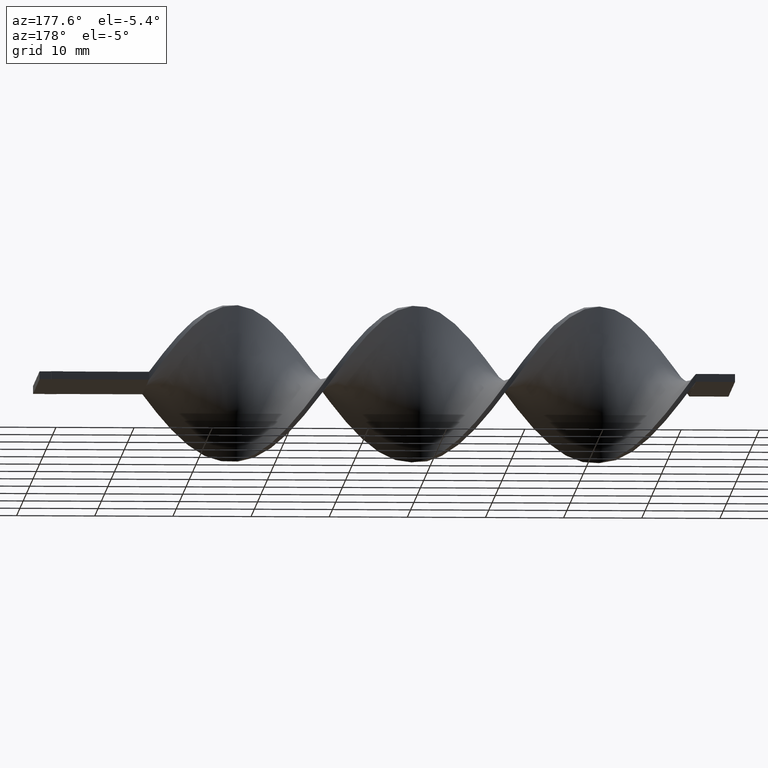
[diagram: clean part render]
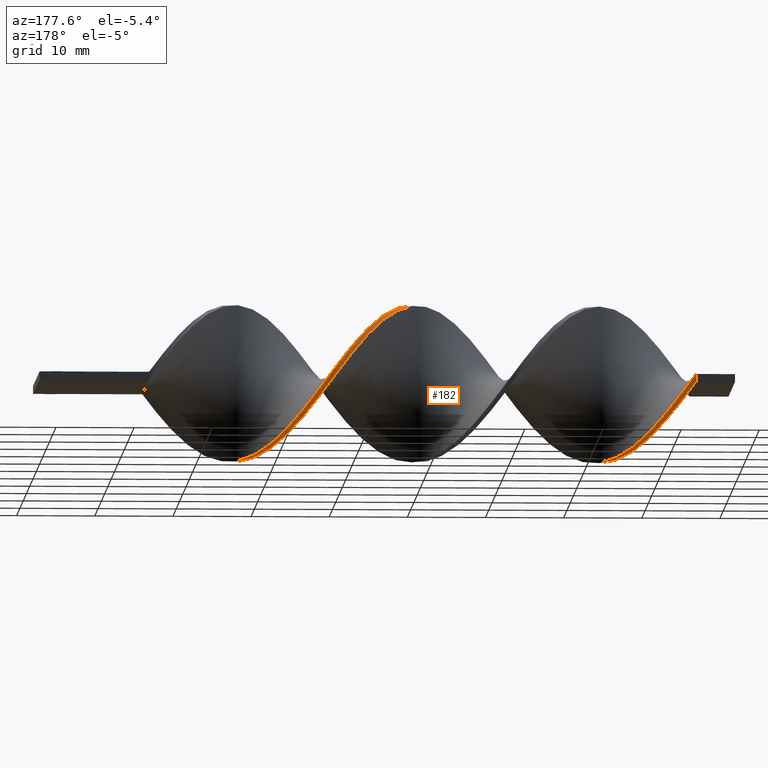
[diagram: same view with one face highlighted and labeled with its STEP entity id]
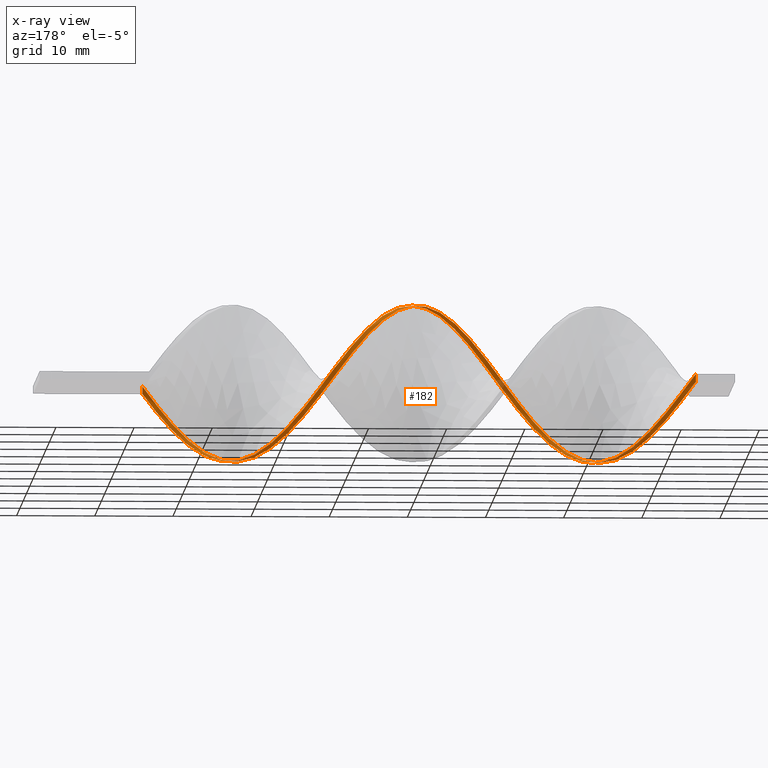
[diagram: x-ray of the same camera — body ghosted, the highlighted face saturated]
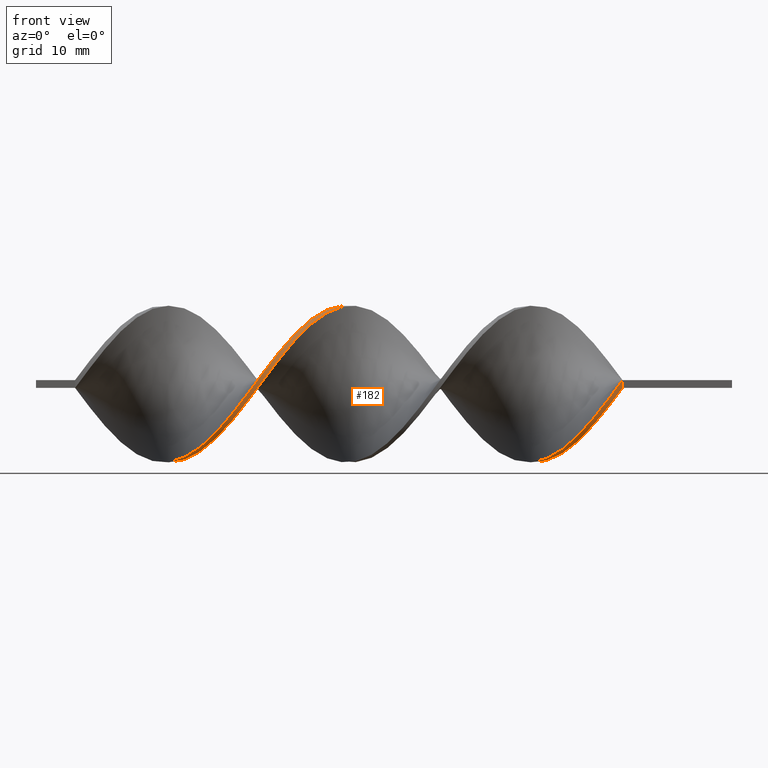
[diagram: same view with one face highlighted and labeled with its STEP entity id]
A machine part, auxiliary view. The second image highlights one B-rep face of the part: STEP entity #182.
The next image is the same camera in x-ray: the body ghosted, the highlighted face saturated — about 2% of this face is hidden behind the body in this view.
A second angle (front view) of the same face is appended — the face is thin or edge-on in the first view.
In plain terms, the highlighted face is a freeform B-spline surface patch.
Its self-contained STEP definition (entity closure, byte-faithful):
#2 = CARTESIAN_POINT ( 'NONE',  ( -22.97435897435897090, -4.013556991768067128, -9.172859983332880773 ) ) ;
#5 = CARTESIAN_POINT ( 'NONE',  ( -34.64102564102564230, 9.597441021197465005, -3.101151636102500220 ) ) ;
#8 = CARTESIAN_POINT ( 'NONE',  ( -16.69230769230769695, -9.597441021197470334, -3.101151636102497555 ) ) ;
#11 = CARTESIAN_POINT ( 'NONE',  ( -31.94871794871794535, 7.816668810831406411, -6.256971208322403832 ) ) ;
#19 = CARTESIAN_POINT ( 'NONE',  ( -59.76923076923077360, -10.06071099161113480, 0.7142198322226109841 ) ) ;
#22 = CARTESIAN_POINT ( 'NONE',  ( -50.79487179487178850, -2.899770140771670945, 9.660194033048929541 ) ) ;
#29 = CARTESIAN_POINT ( 'NONE',  ( -60.66666666666666430, -10.00000000000000178, -0.5000000000000000000 ) ) ;
#34 = CARTESIAN_POINT ( 'NONE',  ( -28.35897435897435770, 4.013556991768060911, -9.172859983332880773 ) ) ;
#35 = CARTESIAN_POINT ( 'NONE',  ( -54.38461538461538680, -7.056934957752314830, 7.206086637525145555 ) ) ;
#43 = CARTESIAN_POINT ( 'NONE',  ( -24.76923076923076650, -0.7090123655042065431, -9.987357081108200418 ) ) ;
#45 = CARTESIAN_POINT ( 'NONE',  ( -66.94871794871795601, -6.302926640005412473, -7.874079717413027701 ) ) ;
#54 = CARTESIAN_POINT ( 'NONE',  ( -16.69230769230769340, -9.597441021197470334, -3.101151636102497555 ) ) ;
#59 = CARTESIAN_POINT ( 'NONE',  ( -30.15384615384615330, 6.092139400258384185, -7.945806285570986560 ) ) ;
#60 = CARTESIAN_POINT ( 'NONE',  ( -83.10256410256410220, 10.06071099161113125, -0.7142198322226099849 ) ) ;
#67 = CARTESIAN_POINT ( 'NONE',  ( -41.82051282051281760, 8.004165665175815292, 6.136884195573978573 ) ) ;
#72 = CARTESIAN_POINT ( 'NONE',  ( -50.79487179487178850, -2.899770140771671390, 9.660194033048929541 ) ) ;
#92 = CARTESIAN_POINT ( 'NONE',  ( -48.10256410256410220, 0.7090123655042074313, 9.987357081108202195 ) ) ;
#95 = CARTESIAN_POINT ( 'NONE',  ( -30.15384615384615330, 5.269155534364728055, -8.513871032302143149 ) ) ;
#100 = CARTESIAN_POINT ( 'NONE',  ( -49.89743589743589069, -1.701721239602251634, 9.866820400852880368 ) ) ;
#104 = CARTESIAN_POINT ( 'NONE',  ( -40.92307692307691980, 9.086921842553980611, 4.204503707611078944 ) ) ;
#110 = CARTESIAN_POINT ( 'NONE',  ( -57.07692307692307310, -9.086921842553982387, 4.204503707611086938 ) ) ;
#112 = CARTESIAN_POINT ( 'NONE',  ( -71.43589743589743080, -1.701721239602260516, -9.866820400852878592 ) ) ;
#114 = CARTESIAN_POINT ( 'NONE',  ( -84.00000000000000000, 9.999999999999998224, -0.5000000000000012212 ) ) ;
#116 = CARTESIAN_POINT ( 'NONE',  ( -60.66666666666666430, -10.00000000000000178, 0.5000000000000000000 ) ) ;
#117 = CARTESIAN_POINT ( 'NONE',  ( -25.66666666666666785, -0.5036723384328433140, -10.07344676865682764 ) ) ;
#121 = CARTESIAN_POINT ( 'NONE',  ( -58.87179487179486870, -9.589760342116740333, 2.878627551588612388 ) ) ;
#124 = CARTESIAN_POINT ( 'NONE',  ( -64.25641025641024839, -9.086921842553984163, -4.204503707611079832 ) ) ;
#126 = CARTESIAN_POINT ( 'NONE',  ( -26.56410256410256210, 0.7090123655042004369, -9.987357081108200418 ) ) ;
#128 = CARTESIAN_POINT ( 'NONE',  ( -24.76923076923076650, -1.701721239602260516, -9.866820400852878592 ) ) ;
#130 = CARTESIAN_POINT ( 'NONE',  ( -75.92307692307693401, 5.127343842764453541, -8.685525933616832006 ) ) ;
#134 = CARTESIAN_POINT ( 'NONE',  ( -21.17948717948717885, -5.269155534364732496, -8.513871032302141373 ) ) ;
#140 = CARTESIAN_POINT ( 'NONE',  ( -23.87179487179487580, -2.899770140771675830, -9.660194033048927764 ) ) ;
#143 = CARTESIAN_POINT ( 'NONE',  ( -44.51282051282051100, 5.269155534364730720, 8.513871032302141373 ) ) ;
#151 = CARTESIAN_POINT ( 'NONE',  ( -48.10256410256410220, 0.7090123655042074313, 9.987357081108202195 ) ) ;
#156 = CARTESIAN_POINT ( 'NONE',  ( -67.84615384615385381, -6.092139400258388626, -7.945806285570984784 ) ) ;
#158 = CARTESIAN_POINT ( 'NONE',  ( -38.23076923076922640, 9.939289008388868751, 1.714219832222602991 ) ) ;
#159 = CARTESIAN_POINT ( 'NONE',  ( -40.92307692307691980, 8.622198670510211826, 5.089959733264289632 ) ) ;
#168 = CARTESIAN_POINT ( 'NONE',  ( -83.10256410256410220, 9.939289008388868751, -1.714219832222609874 ) ) ;
#174 = CARTESIAN_POINT ( 'NONE',  ( -34.64102564102564230, 9.597441021197465005, -3.101151636102500664 ) ) ;
#182 = ADVANCED_FACE ( 'NONE', ( #1357 ), #565, .T. ) ;
#189 = CARTESIAN_POINT ( 'NONE',  ( -13.99999999999999645, -10.00000000000000178, 0.5000000000000000000 ) ) ;
#205 = CARTESIAN_POINT ( 'NONE',  ( -42.71794871794872250, 7.816668810831409964, 6.256971208322399391 ) ) ;
#214 = CARTESIAN_POINT ( 'NONE',  ( -55.28205128205128460, -7.153546152590610774, 7.005481956493506246 ) ) ;
#218 = CARTESIAN_POINT ( 'NONE',  ( -36.43589743589743790, 9.939289008388868751, -1.714219832222609874 ) ) ;
#223 = CARTESIAN_POINT ( 'NONE',  ( -47.20512820512820440, 2.899770140771672722, 9.660194033048927764 ) ) ;
#224 = CARTESIAN_POINT ( 'NONE',  ( -48.10256410256410220, 1.701721239602261404, 9.866820400852876816 ) ) ;
#230 = CARTESIAN_POINT ( 'NONE',  ( -49.00000000000000711, 0.5036723384328420927, 10.07344676865682764 ) ) ;
#233 = CARTESIAN_POINT ( 'NONE',  ( -39.12820512820512420, 9.829076006404298127, 1.907685734162548385 ) ) ;
#239 = CARTESIAN_POINT ( 'NONE',  ( -66.94871794871794179, -6.302926640005413361, -7.874079717413027701 ) ) ;
#242 = CARTESIAN_POINT ( 'NONE',  ( -47.20512820512820440, 2.899770140771672278, 9.660194033048927764 ) ) ;
#247 = CARTESIAN_POINT ( 'NONE',  ( -74.12820512820512420, 2.899770140771672278, -9.660194033048927764 ) ) ;
#251 = CARTESIAN_POINT ( 'NONE',  ( -60.66666666666666430, -10.00000000000000178, 0.5000000000000000000 ) ) ;
#253 = CARTESIAN_POINT ( 'NONE',  ( -13.99999999999999822, -10.00000000000000178, 0.5000000000000000000 ) ) ;
#256 = CARTESIAN_POINT ( 'NONE',  ( -61.56410256410256920, -9.939289008388872304, -1.714219832222605433 ) ) ;
#259 = CARTESIAN_POINT ( 'NONE',  ( -73.23076923076924061, 1.701721239602254521, -9.866820400852878592 ) ) ;
#264 = CARTESIAN_POINT ( 'NONE',  ( -37.33333333333332860, 9.999999999999998224, 0.4999999999999988343 ) ) ;
#269 = CARTESIAN_POINT ( 'NONE',  ( -53.48717948717948900, -6.092139400258385074, 7.945806285570988337 ) ) ;
#276 = CARTESIAN_POINT ( 'NONE',  ( -26.56410256410256210, 1.701721239602254521, -9.866820400852878592 ) ) ;
#282 = CARTESIAN_POINT ( 'NONE',  ( -14.89743589743589602, -9.939289008388872304, -1.714219832222605433 ) ) ;
#283 = CARTESIAN_POINT ( 'NONE',  ( -47.20512820512820440, 1.921697069441246963, 9.901267393559574970 ) ) ;
#291 = CARTESIAN_POINT ( 'NONE',  ( -22.97435897435897090, -3.078540749082652184, -9.527464870375414563 ) ) ;
#303 = CARTESIAN_POINT ( 'NONE',  ( -72.33333333333332860, 0.5036723384328397612, -10.07344676865682942 ) ) ;
#309 = CARTESIAN_POINT ( 'NONE',  ( -39.12820512820512420, 9.589760342116742109, 2.878627551588600397 ) ) ;
#310 = CARTESIAN_POINT ( 'NONE',  ( -66.05128205128204399, -7.153546152590615215, -7.005481956493501805 ) ) ;
#313 = CARTESIAN_POINT ( 'NONE',  ( -14.89743589743589602, -10.06071099161113480, -0.7142198322226054330 ) ) ;
#318 = CARTESIAN_POINT ( 'NONE',  ( -84.00000000000000000, 9.999999999999998224, 0.4999999999999988343 ) ) ;
#321 = CARTESIAN_POINT ( 'NONE',  ( -35.53846153846153300, 9.829076006404296351, -1.907685734162555047 ) ) ;
#331 = CARTESIAN_POINT ( 'NONE',  ( -57.97435897435897090, -9.597441021197468558, 3.101151636102501996 ) ) ;
#343 = CARTESIAN_POINT ( 'NONE',  ( -52.58974358974359120, -4.235384428724044525, 9.153662347191259485 ) ) ;
#350 = CARTESIAN_POINT ( 'NONE',  ( -55.28205128205128460, -7.153546152590610774, 7.005481956493506246 ) ) ;
#352 = CARTESIAN_POINT ( 'NONE',  ( -49.89743589743589069, -0.7090123655041976614, 9.987357081108202195 ) ) ;
#362 = CARTESIAN_POINT ( 'NONE',  ( -61.56410256410256920, -10.06071099161113480, -0.7142198322226054330 ) ) ;
#369 = CARTESIAN_POINT ( 'NONE',  ( -80.41025641025640880, 8.622198670510211826, -5.089959733264292296 ) ) ;
#376 = CARTESIAN_POINT ( 'NONE',  ( -66.05128205128204399, -7.153546152590615215, -7.005481956493501805 ) ) ;
#378 = CARTESIAN_POINT ( 'NONE',  ( -49.00000000000000000, 0.5036723384328420927, 10.07344676865682942 ) ) ;
#380 = CARTESIAN_POINT ( 'NONE',  ( -76.82051282051281760, 5.269155534364728055, -8.513871032302143149 ) ) ;
#381 = CARTESIAN_POINT ( 'NONE',  ( -60.66666666666666430, -10.00000000000000178, -0.5000000000000000000 ) ) ;
#384 = CARTESIAN_POINT ( 'NONE',  ( -17.58974358974358765, -8.622198670510215379, -5.089959733264290520 ) ) ;
#390 = CARTESIAN_POINT ( 'NONE',  ( -82.20512820512820440, 9.829076006404296351, -1.907685734162555047 ) ) ;
#393 = CARTESIAN_POINT ( 'NONE',  ( -31.05128205128205465, 7.056934957752318383, -7.206086637525142891 ) ) ;
#400 = CARTESIAN_POINT ( 'NONE',  ( -75.02564102564102200, 4.013556991768060911, -9.172859983332880773 ) ) ;
#406 = CARTESIAN_POINT ( 'NONE',  ( -23.87179487179487580, -1.921697069441250516, -9.901267393559574970 ) ) ;
#413 = CARTESIAN_POINT ( 'NONE',  ( -41.82051282051281760, 8.004165665175815292, 6.136884195573978573 ) ) ;
#418 = CARTESIAN_POINT ( 'NONE',  ( -46.30769230769230660, 3.078540749082650407, 9.527464870375414563 ) ) ;
#419 = CARTESIAN_POINT ( 'NONE',  ( -39.12820512820512420, 9.589760342116742109, 2.878627551588600397 ) ) ;
#421 = CARTESIAN_POINT ( 'NONE',  ( -79.51282051282051100, 8.004165665175813515, -6.136884195573980350 ) ) ;
#432 = CARTESIAN_POINT ( 'NONE',  ( -70.53846153846153300, -1.921697069441250516, -9.901267393559574970 ) ) ;
#440 = CARTESIAN_POINT ( 'NONE',  ( -69.64102564102564941, -4.013556991768067128, -9.172859983332880773 ) ) ;
#443 = CARTESIAN_POINT ( 'NONE',  ( -19.38461538461538325, -7.153546152590615215, -7.005481956493501805 ) ) ;
#445 = CARTESIAN_POINT ( 'NONE',  ( -21.17948717948717885, -6.092139400258388626, -7.945806285570984784 ) ) ;
#448 = CARTESIAN_POINT ( 'NONE',  ( -18.48717948717948545, -8.004165665175818845, -6.136884195573979461 ) ) ;
#449 = CARTESIAN_POINT ( 'NONE',  ( -73.23076923076924061, 1.701721239602254521, -9.866820400852878592 ) ) ;
#453 = DIRECTION ( 'NONE',  ( -0.000000000000000000, -0.000000000000000000, -1.000000000000000000 ) ) ;
#459 = CARTESIAN_POINT ( 'NONE',  ( -75.02564102564102200, 4.013556991768060911, -9.172859983332880773 ) ) ;
#462 = CARTESIAN_POINT ( 'NONE',  ( -13.99999999999999645, -10.00000000000000178, 0.5000000000000000000 ) ) ;
#468 = CARTESIAN_POINT ( 'NONE',  ( -55.28205128205128460, -7.816668810831406411, 6.256971208322405609 ) ) ;
#470 = CARTESIAN_POINT ( 'NONE',  ( -73.23076923076924061, 0.7090123655042004369, -9.987357081108200418 ) ) ;
#476 = CARTESIAN_POINT ( 'NONE',  ( -52.58974358974358410, -4.235384428724044525, 9.153662347191259485 ) ) ;
#477 = CARTESIAN_POINT ( 'NONE',  ( -23.87179487179487580, -2.899770140771675830, -9.660194033048927764 ) ) ;
#488 = CARTESIAN_POINT ( 'NONE',  ( -35.53846153846153300, 9.589760342116736780, -2.878627551588606615 ) ) ;
#493 = CARTESIAN_POINT ( 'NONE',  ( -79.51282051282051100, 8.004165665175813515, -6.136884195573980350 ) ) ;
#496 = CARTESIAN_POINT ( 'NONE',  ( -62.46153846153845990, -9.829076006404301680, -1.907685734162551494 ) ) ;
#498 = CARTESIAN_POINT ( 'NONE',  ( -31.05128205128205821, 6.302926640005407144, -7.874079717413028590 ) ) ;
#500 = CARTESIAN_POINT ( 'NONE',  ( -75.92307692307691980, 4.235384428724048966, -9.153662347191257709 ) ) ;
#504 = CARTESIAN_POINT ( 'NONE',  ( -29.25641025641025905, 4.235384428724049855, -9.153662347191257709 ) ) ;
#506 = CARTESIAN_POINT ( 'NONE',  ( -38.23076923076922640, 9.939289008388868751, 1.714219832222602991 ) ) ;
#510 = CARTESIAN_POINT ( 'NONE',  ( -81.30769230769233502, 9.240231675844613690, -4.043035270954605132 ) ) ;
#511 = CARTESIAN_POINT ( 'NONE',  ( -27.46153846153846345, 1.921697069441246519, -9.901267393559574970 ) ) ;
#513 = CARTESIAN_POINT ( 'NONE',  ( -25.66666666666666785, 0.5036723384328397612, -10.07344676865682942 ) ) ;
#518 = CARTESIAN_POINT ( 'NONE',  ( -71.43589743589743080, -0.7090123655042065431, -9.987357081108200418 ) ) ;
#521 = CARTESIAN_POINT ( 'NONE',  ( -82.20512820512820440, 9.589760342116736780, -2.878627551588606615 ) ) ;
#527 = CARTESIAN_POINT ( 'NONE',  ( -59.76923076923077360, -9.939289008388872304, 1.714219832222610984 ) ) ;
#533 = CARTESIAN_POINT ( 'NONE',  ( -40.02564102564102200, 9.240231675844615467, 4.043035270954598914 ) ) ;
#539 = CARTESIAN_POINT ( 'NONE',  ( -40.92307692307691980, 8.622198670510211826, 5.089959733264289632 ) ) ;
#540 = CARTESIAN_POINT ( 'NONE',  ( -16.69230769230769340, -9.240231675844617243, -4.043035270954601579 ) ) ;
#551 = CARTESIAN_POINT ( 'NONE',  ( -84.00000000000000000, 9.999999999999998224, -0.5000000000000012212 ) ) ;
#564 = VERTEX_POINT ( 'NONE', #318 ) ;
#565 =( BOUNDED_SURFACE ( )  B_SPLINE_SURFACE ( 1, 2, ( 
 ( #1184, #282, #1294, #1417, #1058, #448, #443, #794, #674, #1534, #291, #1308, #43, #802, #1300, #785, #34, #681, #59, #1554, #905, #928, #1560, #174, #321, #1191, #1177, #158, #309, #811, #539, #67, #1065, #934, #1436, #658, #418, #1412, #92, #1198, #100, #72, #1476, #575, #724, #1236, #468, #1075, #110, #331, #609, #19, #381, #1490, #1369, #1361, #1505, #875, #376, #239, #1262, #1001, #1384, #617, #518, #866, #259, #247, #400, #130, #994, #1129, #1376, #1123, #741, #884, #390, #756, #1271 ),
 ( #253, #1134, #1394, #8, #861, #1252, #731, #1497, #632, #749, #2, #140, #1246, #117, #126, #511, #638, #504, #1144, #498, #626, #987, #730, #835, #957, #218, #1101, #1224, #1069, #1289, #981, #1336, #205, #1466, #1094, #1210, #971, #223, #1354, #230, #1613, #1363, #585, #476, #961, #1228, #350, #726, #1238, #733, #1007, #527, #116, #1121, #496, #1251, #124, #624, #1127, #1037, #156, #1055, #440, #1541, #913, #1047, #1434, #572, #1073, #1442, #380, #755, #1368, #421, #1259, #510, #1000, #1504, #114 ) ),
 .UNSPECIFIED., .F., .F., .F. ) 
 B_SPLINE_SURFACE_WITH_KNOTS ( ( 2, 2 ),
 ( 3, 2, 2, 2, 2, 2, 2, 2, 2, 2, 2, 2, 2, 2, 2, 2, 2, 2, 2, 2, 2, 2, 2, 2, 2, 2, 2, 2, 2, 2, 2, 2, 2, 2, 2, 2, 2, 2, 2, 3 ),
 ( 0.000000000000000000, 1.000000000000000000 ),
 ( 0.000000000000000000, 0.01923076923076923184, 0.03846153846153846367, 0.05769230769230769551, 0.07692307692307692735, 0.09615384615384615918, 0.1153846153846153910, 0.1346153846153846090, 0.1538461538461538547, 0.1730769230769230727, 0.1923076923076923184, 0.2115384615384615363, 0.2307692307692307820, 0.2500000000000000000, 0.2692307692307692180, 0.2884615384615384359, 0.3076923076923077094, 0.3269230769230769273, 0.3461538461538461453, 0.3653846153846153633, 0.3846153846153846367, 0.4038461538461538547, 0.4230769230769230727, 0.4423076923076922906, 0.4615384615384615641, 0.4807692307692307820, 0.5000000000000000000, 0.5192307692307692735, 0.5384615384615384359, 0.5576923076923077094, 0.5769230769230768718, 0.5961538461538461453, 0.6153846153846154188, 0.6346153846153845812, 0.6538461538461538547, 0.6730769230769231282, 0.6923076923076922906, 0.7115384615384615641, 0.7307692307692307265, 0.7500000000000000000 ),
 .UNSPECIFIED. ) 
 GEOMETRIC_REPRESENTATION_ITEM ( )  RATIONAL_B_SPLINE_SURFACE ( (
 ( 1.000000000000000000, 0.9927088740980539727, 1.000000000000000000, 0.9927088740980539727, 1.000000000000000000, 0.9927088740980539727, 1.000000000000000000, 0.9927088740980539727, 1.000000000000000000, 0.9927088740980539727, 1.000000000000000000, 0.9927088740980539727, 1.000000000000000000, 0.9927088740980539727, 1.000000000000000000, 0.9927088740980539727, 1.000000000000000000, 0.9927088740980539727, 1.000000000000000000, 0.9927088740980539727, 1.000000000000000000, 0.9927088740980539727, 1.000000000000000000, 0.9927088740980539727, 1.000000000000000000, 0.9927088740980539727, 1.000000000000000000, 0.9927088740980539727, 1.000000000000000000, 0.9927088740980539727, 1.000000000000000000, 0.9927088740980539727, 1.000000000000000000, 0.9927088740980539727, 1.000000000000000000, 0.9927088740980539727, 1.000000000000000000, 0.9927088740980539727, 1.000000000000000000, 0.9927088740980539727, 1.000000000000000000, 0.9927088740980539727, 1.000000000000000000, 0.9927088740980539727, 1.000000000000000000, 0.9927088740980539727, 1.000000000000000000, 0.9927088740980539727, 1.000000000000000000, 0.9927088740980539727, 1.000000000000000000, 0.9927088740980539727, 1.000000000000000000, 0.9927088740980539727, 1.000000000000000000, 0.9927088740980539727, 1.000000000000000000, 0.9927088740980539727, 1.000000000000000000, 0.9927088740980539727, 1.000000000000000000, 0.9927088740980539727, 1.000000000000000000, 0.9927088740980539727, 1.000000000000000000, 0.9927088740980539727, 1.000000000000000000, 0.9927088740980539727, 1.000000000000000000, 0.9927088740980539727, 1.000000000000000000, 0.9927088740980539727, 1.000000000000000000, 0.9927088740980539727, 1.000000000000000000, 0.9927088740980539727, 1.000000000000000000, 0.9927088740980539727, 1.000000000000000000),
 ( 1.000000000000000000, 0.9927088740980539727, 1.000000000000000000, 0.9927088740980539727, 1.000000000000000000, 0.9927088740980539727, 1.000000000000000000, 0.9927088740980539727, 1.000000000000000000, 0.9927088740980539727, 1.000000000000000000, 0.9927088740980539727, 1.000000000000000000, 0.9927088740980539727, 1.000000000000000000, 0.9927088740980539727, 1.000000000000000000, 0.9927088740980539727, 1.000000000000000000, 0.9927088740980539727, 1.000000000000000000, 0.9927088740980539727, 1.000000000000000000, 0.9927088740980539727, 1.000000000000000000, 0.9927088740980539727, 1.000000000000000000, 0.9927088740980539727, 1.000000000000000000, 0.9927088740980539727, 1.000000000000000000, 0.9927088740980539727, 1.000000000000000000, 0.9927088740980539727, 1.000000000000000000, 0.9927088740980539727, 1.000000000000000000, 0.9927088740980539727, 1.000000000000000000, 0.9927088740980539727, 1.000000000000000000, 0.9927088740980539727, 1.000000000000000000, 0.9927088740980539727, 1.000000000000000000, 0.9927088740980539727, 1.000000000000000000, 0.9927088740980539727, 1.000000000000000000, 0.9927088740980539727, 1.000000000000000000, 0.9927088740980539727, 1.000000000000000000, 0.9927088740980539727, 1.000000000000000000, 0.9927088740980539727, 1.000000000000000000, 0.9927088740980539727, 1.000000000000000000, 0.9927088740980539727, 1.000000000000000000, 0.9927088740980539727, 1.000000000000000000, 0.9927088740980539727, 1.000000000000000000, 0.9927088740980539727, 1.000000000000000000, 0.9927088740980539727, 1.000000000000000000, 0.9927088740980539727, 1.000000000000000000, 0.9927088740980539727, 1.000000000000000000, 0.9927088740980539727, 1.000000000000000000, 0.9927088740980539727, 1.000000000000000000, 0.9927088740980539727, 1.000000000000000000) ) ) 
 REPRESENTATION_ITEM ( '' )  SURFACE ( )  );
#572 = CARTESIAN_POINT ( 'NONE',  ( -74.12820512820512420, 1.921697069441246519, -9.901267393559574970 ) ) ;
#575 = CARTESIAN_POINT ( 'NONE',  ( -52.58974358974358410, -5.127343842764450876, 8.685525933616833782 ) ) ;
#585 = CARTESIAN_POINT ( 'NONE',  ( -51.69230769230769340, -3.078540749082649963, 9.527464870375414563 ) ) ;
#594 = CARTESIAN_POINT ( 'NONE',  ( -26.56410256410256210, 0.7090123655042004369, -9.987357081108200418 ) ) ;
#602 = CARTESIAN_POINT ( 'NONE',  ( -57.07692307692307310, -8.622198670510213603, 5.089959733264296737 ) ) ;
#609 = CARTESIAN_POINT ( 'NONE',  ( -58.87179487179486870, -9.829076006404299903, 1.907685734162560820 ) ) ;
#612 = CARTESIAN_POINT ( 'NONE',  ( -31.05128205128205465, 6.302926640005407144, -7.874079717413029478 ) ) ;
#617 = CARTESIAN_POINT ( 'NONE',  ( -70.53846153846153300, -1.921697069441250294, -9.901267393559574970 ) ) ;
#620 = CARTESIAN_POINT ( 'NONE',  ( -69.64102564102564941, -4.013556991768067128, -9.172859983332880773 ) ) ;
#624 = CARTESIAN_POINT ( 'NONE',  ( -65.15384615384614619, -8.576402663910501545, -5.307855779119662110 ) ) ;
#626 = CARTESIAN_POINT ( 'NONE',  ( -31.94871794871794535, 7.153546152590610774, -7.005481956493504470 ) ) ;
#630 = CARTESIAN_POINT ( 'NONE',  ( -70.53846153846153300, -2.899770140771675830, -9.660194033048927764 ) ) ;
#632 = CARTESIAN_POINT ( 'NONE',  ( -21.17948717948717885, -6.092139400258388626, -7.945806285570984784 ) ) ;
#635 = CARTESIAN_POINT ( 'NONE',  ( -27.46153846153846345, 2.899770140771671834, -9.660194033048927764 ) ) ;
#636 = CARTESIAN_POINT ( 'NONE',  ( -84.00000000000000000, 9.999999999999998224, -0.5000000000000012212 ) ) ;
#638 = CARTESIAN_POINT ( 'NONE',  ( -28.35897435897435770, 3.078540749082645966, -9.527464870375414563 ) ) ;
#641 = CARTESIAN_POINT ( 'NONE',  ( -49.89743589743589069, -1.701721239602251634, 9.866820400852880368 ) ) ;
#649 = ORIENTED_EDGE ( 'NONE', *, *, #1280, .F. ) ;
#650 = CARTESIAN_POINT ( 'NONE',  ( -15.79487179487179205, -9.589760342116742109, -2.878627551588603062 ) ) ;
#658 = CARTESIAN_POINT ( 'NONE',  ( -45.41025641025640880, 4.235384428724056072, 9.153662347191254156 ) ) ;
#660 = CARTESIAN_POINT ( 'NONE',  ( -20.28205128205128460, -6.302926640005412473, -7.874079717413027701 ) ) ;
#669 = CARTESIAN_POINT ( 'NONE',  ( -58.87179487179486870, -9.829076006404299903, 1.907685734162560820 ) ) ;
#674 = CARTESIAN_POINT ( 'NONE',  ( -21.17948717948717885, -5.269155534364732496, -8.513871032302141373 ) ) ;
#681 = CARTESIAN_POINT ( 'NONE',  ( -29.25641025641025905, 5.127343842764453541, -8.685525933616832006 ) ) ;
#683 = CARTESIAN_POINT ( 'NONE',  ( -17.58974358974358765, -9.086921842553984163, -4.204503707611079832 ) ) ;
#685 = CARTESIAN_POINT ( 'NONE',  ( -13.99999999999999645, -10.00000000000000178, 0.5000000000000000000 ) ) ;
#689 = CARTESIAN_POINT ( 'NONE',  ( -81.30769230769232081, 9.597441021197465005, -3.101151636102500220 ) ) ;
#712 = CARTESIAN_POINT ( 'NONE',  ( -56.17948717948717530, -8.004165665175817068, 6.136884195573983014 ) ) ;
#718 = CARTESIAN_POINT ( 'NONE',  ( -53.48717948717948900, -5.269155534364728943, 8.513871032302144926 ) ) ;
#724 = CARTESIAN_POINT ( 'NONE',  ( -53.48717948717948900, -6.092139400258385074, 7.945806285570988337 ) ) ;
#726 = CARTESIAN_POINT ( 'NONE',  ( -56.17948717948717530, -8.004165665175817068, 6.136884195573982126 ) ) ;
#727 = CARTESIAN_POINT ( 'NONE',  ( -77.71794871794874382, 6.302926640005407144, -7.874079717413029478 ) ) ;
#730 = CARTESIAN_POINT ( 'NONE',  ( -33.74358974358974450, 8.622198670510211826, -5.089959733264292296 ) ) ;
#731 = CARTESIAN_POINT ( 'NONE',  ( -19.38461538461538325, -7.816668810831409964, -6.256971208322401168 ) ) ;
#733 = CARTESIAN_POINT ( 'NONE',  ( -57.97435897435897090, -9.240231675844617243, 4.043035270954606020 ) ) ;
#735 = CARTESIAN_POINT ( 'NONE',  ( -46.30769230769230660, 4.013556991768065352, 9.172859983332880773 ) ) ;
#741 = CARTESIAN_POINT ( 'NONE',  ( -80.41025641025640880, 9.086921842553980611, -4.204503707611081609 ) ) ;
#746 = CARTESIAN_POINT ( 'NONE',  ( -62.46153846153845990, -9.829076006404301680, -1.907685734162551494 ) ) ;
#749 = CARTESIAN_POINT ( 'NONE',  ( -22.07692307692308376, -5.127343842764454429, -8.685525933616832006 ) ) ;
#752 = CARTESIAN_POINT ( 'NONE',  ( -64.25641025641024839, -8.622198670510215379, -5.089959733264290520 ) ) ;
#755 = CARTESIAN_POINT ( 'NONE',  ( -77.71794871794872961, 6.302926640005407144, -7.874079717413028590 ) ) ;
#756 = CARTESIAN_POINT ( 'NONE',  ( -83.10256410256410220, 10.06071099161113125, -0.7142198322226098739 ) ) ;
#761 = CARTESIAN_POINT ( 'NONE',  ( -81.30769230769232081, 9.240231675844611914, -4.043035270954604243 ) ) ;
#768 = CARTESIAN_POINT ( 'NONE',  ( -62.46153846153845990, -9.589760342116742109, -2.878627551588603062 ) ) ;
#770 = CARTESIAN_POINT ( 'NONE',  ( -84.00000000000000000, 9.999999999999998224, -0.1666666666666678787 ) ) ;
#775 = CARTESIAN_POINT ( 'NONE',  ( -36.43589743589743790, 10.06071099161113125, -0.7142198322226099849 ) ) ;
#785 = CARTESIAN_POINT ( 'NONE',  ( -27.46153846153846345, 2.899770140771672278, -9.660194033048927764 ) ) ;
#786 = CARTESIAN_POINT ( 'NONE',  ( -56.17948717948717530, -8.576402663910499768, 5.307855779119664774 ) ) ;
#794 = CARTESIAN_POINT ( 'NONE',  ( -20.28205128205128460, -6.302926640005413361, -7.874079717413027701 ) ) ;
#795 = CARTESIAN_POINT ( 'NONE',  ( -71.43589743589743080, -0.7090123655042065431, -9.987357081108200418 ) ) ;
#796 = CARTESIAN_POINT ( 'NONE',  ( -22.97435897435897090, -4.013556991768067128, -9.172859983332880773 ) ) ;
#799 = EDGE_CURVE ( 'NONE', #1500, #1269, #1311, .T. ) ;
#802 = CARTESIAN_POINT ( 'NONE',  ( -25.66666666666666785, 0.5036723384328397612, -10.07344676865682764 ) ) ;
#806 = B_SPLINE_CURVE_WITH_KNOTS ( 'NONE', 3,
 ( #870, #1223, #770, #636 ),
 .UNSPECIFIED., .F., .F.,
 ( 4, 4 ),
 ( 0.000000000000000000, 1.000000000000000000 ),
 .UNSPECIFIED. ) ;
#811 = CARTESIAN_POINT ( 'NONE',  ( -40.02564102564102200, 9.240231675844617243, 4.043035270954598914 ) ) ;
#812 = VECTOR ( 'NONE', #453, 1000.000000000000000 ) ;
#813 = CARTESIAN_POINT ( 'NONE',  ( -75.92307692307691980, 5.127343842764453541, -8.685525933616832006 ) ) ;
#835 = CARTESIAN_POINT ( 'NONE',  ( -34.64102564102564230, 9.240231675844613690, -4.043035270954605132 ) ) ;
#839 = CARTESIAN_POINT ( 'NONE',  ( -33.74358974358974450, 8.622198670510211826, -5.089959733264292296 ) ) ;
#843 = CARTESIAN_POINT ( 'NONE',  ( -63.35897435897436480, -9.597441021197470334, -3.101151636102497555 ) ) ;
#852 = CARTESIAN_POINT ( 'NONE',  ( -74.12820512820510999, 1.921697069441246519, -9.901267393559574970 ) ) ;
#856 = CARTESIAN_POINT ( 'NONE',  ( -32.84615384615384670, 8.004165665175813515, -6.136884195573980350 ) ) ;
#861 = CARTESIAN_POINT ( 'NONE',  ( -17.58974358974358765, -9.086921842553984163, -4.204503707611079832 ) ) ;
#863 = CARTESIAN_POINT ( 'NONE',  ( -44.51282051282051100, 6.092139400258386850, 7.945806285570984784 ) ) ;
#866 = CARTESIAN_POINT ( 'NONE',  ( -72.33333333333332860, 0.5036723384328397612, -10.07344676865682764 ) ) ;
#869 = CARTESIAN_POINT ( 'NONE',  ( -24.76923076923076650, -0.7090123655042065431, -9.987357081108200418 ) ) ;
#870 = CARTESIAN_POINT ( 'NONE',  ( -84.00000000000000000, 9.999999999999998224, 0.4999999999999988343 ) ) ;
#875 = CARTESIAN_POINT ( 'NONE',  ( -65.15384615384614619, -8.004165665175818845, -6.136884195573979461 ) ) ;
#884 = CARTESIAN_POINT ( 'NONE',  ( -81.30769230769233502, 9.597441021197465005, -3.101151636102500664 ) ) ;
#889 = CARTESIAN_POINT ( 'NONE',  ( -51.69230769230769340, -4.013556991768065352, 9.172859983332880773 ) ) ;
#896 = CARTESIAN_POINT ( 'NONE',  ( -13.99999999999999645, -10.00000000000000178, -0.5000000000000000000 ) ) ;
#905 = CARTESIAN_POINT ( 'NONE',  ( -31.94871794871794535, 7.816668810831406411, -6.256971208322403832 ) ) ;
#906 =( BOUNDED_CURVE ( )  B_SPLINE_CURVE ( 2, ( #462, #313, #1440, #54, #683, #947, #1061, #1580, #445, #1432, #796, #477, #128, #972, #594, #953, #1096, #1221, #95, #612, #1230, #856, #839, #989, #488, #1365, #1469, #1493, #233, #1107, #104, #1479, #1338, #963, #863, #982, #735, #242, #224, #378, #352, #1248, #1372, #343, #718, #1601, #214, #712, #602, #1590, #121, #1256, #251, #362, #746, #843, #1486, #1242, #1132, #1614, #1117, #1347, #620, #630, #112, #1457, #470, #852, #1125, #500, #1356, #727, #1608, #493, #369, #761, #521, #168, #1508 ),
 .UNSPECIFIED., .F., .T. ) 
 B_SPLINE_CURVE_WITH_KNOTS ( ( 3, 2, 2, 2, 2, 2, 2, 2, 2, 2, 2, 2, 2, 2, 2, 2, 2, 2, 2, 2, 2, 2, 2, 2, 2, 2, 2, 2, 2, 2, 2, 2, 2, 2, 2, 2, 2, 2, 2, 3 ),
 ( 0.000000000000000000, 0.01923076923076923184, 0.03846153846153846367, 0.05769230769230768857, 0.07692307692307692735, 0.09615384615384615918, 0.1153846153846153771, 0.1346153846153846090, 0.1538461538461538547, 0.1730769230769230449, 0.1923076923076923184, 0.2115384615384615363, 0.2307692307692307543, 0.2500000000000000000, 0.2692307692307692180, 0.2884615384615384359, 0.3076923076923077094, 0.3269230769230769273, 0.3461538461538460898, 0.3653846153846153633, 0.3846153846153846367, 0.4038461538461539102, 0.4230769230769230727, 0.4423076923076922906, 0.4615384615384615086, 0.4807692307692307820, 0.5000000000000000000, 0.5192307692307692735, 0.5384615384615384359, 0.5576923076923077094, 0.5769230769230768718, 0.5961538461538461453, 0.6153846153846154188, 0.6346153846153845812, 0.6538461538461538547, 0.6730769230769230171, 0.6923076923076921796, 0.7115384615384615641, 0.7307692307692307265, 0.7500000000000000000 ),
 .UNSPECIFIED. ) 
 CURVE ( )  GEOMETRIC_REPRESENTATION_ITEM ( )  RATIONAL_B_SPLINE_CURVE ( ( 1.000000000000000000, 0.9927088740980539727, 1.000000000000000000, 0.9927088740980539727, 1.000000000000000000, 0.9927088740980539727, 1.000000000000000000, 0.9927088740980539727, 1.000000000000000000, 0.9927088740980539727, 1.000000000000000000, 0.9927088740980539727, 1.000000000000000000, 0.9927088740980539727, 1.000000000000000000, 0.9927088740980539727, 1.000000000000000000, 0.9927088740980539727, 1.000000000000000000, 0.9927088740980539727, 1.000000000000000000, 0.9927088740980539727, 1.000000000000000000, 0.9927088740980539727, 1.000000000000000000, 0.9927088740980539727, 1.000000000000000000, 0.9927088740980539727, 1.000000000000000000, 0.9927088740980539727, 1.000000000000000000, 0.9927088740980539727, 1.000000000000000000, 0.9927088740980539727, 1.000000000000000000, 0.9927088740980539727, 1.000000000000000000, 0.9927088740980539727, 1.000000000000000000, 0.9927088740980539727, 1.000000000000000000, 0.9927088740980539727, 1.000000000000000000, 0.9927088740980539727, 1.000000000000000000, 0.9927088740980539727, 1.000000000000000000, 0.9927088740980539727, 1.000000000000000000, 0.9927088740980539727, 1.000000000000000000, 0.9927088740980539727, 1.000000000000000000, 0.9927088740980539727, 1.000000000000000000, 0.9927088740980539727, 1.000000000000000000, 0.9927088740980539727, 1.000000000000000000, 0.9927088740980539727, 1.000000000000000000, 0.9927088740980539727, 1.000000000000000000, 0.9927088740980539727, 1.000000000000000000, 0.9927088740980539727, 1.000000000000000000, 0.9927088740980539727, 1.000000000000000000, 0.9927088740980539727, 1.000000000000000000, 0.9927088740980539727, 1.000000000000000000, 0.9927088740980539727, 1.000000000000000000, 0.9927088740980539727, 1.000000000000000000, 0.9927088740980539727, 1.000000000000000000 ) ) 
 REPRESENTATION_ITEM ( '' )  );
#907 = CARTESIAN_POINT ( 'NONE',  ( -18.48717948717948545, -8.004165665175818845, -6.136884195573979461 ) ) ;
#913 = CARTESIAN_POINT ( 'NONE',  ( -71.43589743589743080, -1.701721239602260516, -9.866820400852878592 ) ) ;
#928 = CARTESIAN_POINT ( 'NONE',  ( -32.84615384615384670, 8.576402663910496216, -5.307855779119662998 ) ) ;
#930 = CARTESIAN_POINT ( 'NONE',  ( -77.71794871794874382, 7.056934957752318383, -7.206086637525142891 ) ) ;
#934 = CARTESIAN_POINT ( 'NONE',  ( -43.61538461538461320, 6.302926640005414249, 7.874079717413025925 ) ) ;
#937 = CARTESIAN_POINT ( 'NONE',  ( -80.41025641025640880, 9.086921842553980611, -4.204503707611081609 ) ) ;
#944 = CARTESIAN_POINT ( 'NONE',  ( -76.82051282051281760, 6.092139400258384185, -7.945806285570986560 ) ) ;
#947 = CARTESIAN_POINT ( 'NONE',  ( -18.48717948717948545, -8.576402663910501545, -5.307855779119662110 ) ) ;
#953 = CARTESIAN_POINT ( 'NONE',  ( -27.46153846153846345, 1.921697069441246519, -9.901267393559574970 ) ) ;
#957 = CARTESIAN_POINT ( 'NONE',  ( -35.53846153846153300, 9.589760342116736780, -2.878627551588606615 ) ) ;
#961 = CARTESIAN_POINT ( 'NONE',  ( -53.48717948717948900, -5.269155534364728943, 8.513871032302144926 ) ) ;
#963 = CARTESIAN_POINT ( 'NONE',  ( -43.61538461538461320, 7.056934957752321047, 7.206086637525138450 ) ) ;
#971 = CARTESIAN_POINT ( 'NONE',  ( -46.30769230769230660, 4.013556991768065352, 9.172859983332880773 ) ) ;
#972 = CARTESIAN_POINT ( 'NONE',  ( -25.66666666666666785, -0.5036723384328433140, -10.07344676865682942 ) ) ;
#981 = CARTESIAN_POINT ( 'NONE',  ( -40.92307692307691980, 9.086921842553980611, 4.204503707611078944 ) ) ;
#982 = CARTESIAN_POINT ( 'NONE',  ( -45.41025641025640880, 5.127343842764457982, 8.685525933616828453 ) ) ;
#987 = CARTESIAN_POINT ( 'NONE',  ( -32.84615384615384670, 8.004165665175813515, -6.136884195573980350 ) ) ;
#989 = CARTESIAN_POINT ( 'NONE',  ( -34.64102564102564230, 9.240231675844611914, -4.043035270954604243 ) ) ;
#994 = CARTESIAN_POINT ( 'NONE',  ( -76.82051282051281760, 6.092139400258384185, -7.945806285570986560 ) ) ;
#996 = CARTESIAN_POINT ( 'NONE',  ( -13.99999999999999645, -10.00000000000000178, -0.5000000000000000000 ) ) ;
#997 = EDGE_CURVE ( 'NONE', #564, #1292, #806, .T. ) ;
#1000 = CARTESIAN_POINT ( 'NONE',  ( -82.20512820512820440, 9.589760342116736780, -2.878627551588606615 ) ) ;
#1001 = CARTESIAN_POINT ( 'NONE',  ( -68.74358974358973740, -4.235384428724052519, -9.153662347191257709 ) ) ;
#1003 = CARTESIAN_POINT ( 'NONE',  ( -32.84615384615384670, 8.576402663910496216, -5.307855779119662998 ) ) ;
#1007 = CARTESIAN_POINT ( 'NONE',  ( -58.87179487179486870, -9.589760342116740333, 2.878627551588612388 ) ) ;
#1012 =( BOUNDED_CURVE ( )  B_SPLINE_CURVE ( 2, ( #896, #1013, #650, #540, #384, #907, #1145, #660, #134, #1286, #1518, #406, #869, #513, #276, #635, #1405, #1379, #1138, #393, #11, #1003, #1387, #5, #1526, #775, #264, #506, #419, #533, #159, #413, #1272, #1535, #143, #1413, #1159, #283, #151, #1266, #641, #22, #889, #1397, #269, #35, #1031, #786, #1295, #1150, #669, #1499, #29, #256, #768, #1278, #752, #1021, #310, #45, #1076, #1066, #1185, #432, #795, #303, #449, #1438, #459, #813, #944, #930, #1570, #1555, #937, #689, #1301, #60, #1427 ),
 .UNSPECIFIED., .F., .T. ) 
 B_SPLINE_CURVE_WITH_KNOTS ( ( 3, 2, 2, 2, 2, 2, 2, 2, 2, 2, 2, 2, 2, 2, 2, 2, 2, 2, 2, 2, 2, 2, 2, 2, 2, 2, 2, 2, 2, 2, 2, 2, 2, 2, 2, 2, 2, 2, 2, 3 ),
 ( 0.000000000000000000, 0.01923076923076923184, 0.03846153846153846367, 0.05769230769230768857, 0.07692307692307692735, 0.09615384615384615918, 0.1153846153846153771, 0.1346153846153846090, 0.1538461538461538547, 0.1730769230769230449, 0.1923076923076923184, 0.2115384615384615363, 0.2307692307692307543, 0.2500000000000000000, 0.2692307692307692180, 0.2884615384615384359, 0.3076923076923077094, 0.3269230769230769273, 0.3461538461538460898, 0.3653846153846153633, 0.3846153846153846367, 0.4038461538461539102, 0.4230769230769230727, 0.4423076923076922906, 0.4615384615384615086, 0.4807692307692307820, 0.5000000000000000000, 0.5192307692307692735, 0.5384615384615384359, 0.5576923076923077094, 0.5769230769230768718, 0.5961538461538461453, 0.6153846153846154188, 0.6346153846153845812, 0.6538461538461538547, 0.6730769230769230171, 0.6923076923076921796, 0.7115384615384615641, 0.7307692307692307265, 0.7500000000000000000 ),
 .UNSPECIFIED. ) 
 CURVE ( )  GEOMETRIC_REPRESENTATION_ITEM ( )  RATIONAL_B_SPLINE_CURVE ( ( 1.000000000000000000, 0.9927088740980539727, 1.000000000000000000, 0.9927088740980539727, 1.000000000000000000, 0.9927088740980539727, 1.000000000000000000, 0.9927088740980539727, 1.000000000000000000, 0.9927088740980539727, 1.000000000000000000, 0.9927088740980539727, 1.000000000000000000, 0.9927088740980539727, 1.000000000000000000, 0.9927088740980539727, 1.000000000000000000, 0.9927088740980539727, 1.000000000000000000, 0.9927088740980539727, 1.000000000000000000, 0.9927088740980539727, 1.000000000000000000, 0.9927088740980539727, 1.000000000000000000, 0.9927088740980539727, 1.000000000000000000, 0.9927088740980539727, 1.000000000000000000, 0.9927088740980539727, 1.000000000000000000, 0.9927088740980539727, 1.000000000000000000, 0.9927088740980539727, 1.000000000000000000, 0.9927088740980539727, 1.000000000000000000, 0.9927088740980539727, 1.000000000000000000, 0.9927088740980539727, 1.000000000000000000, 0.9927088740980539727, 1.000000000000000000, 0.9927088740980539727, 1.000000000000000000, 0.9927088740980539727, 1.000000000000000000, 0.9927088740980539727, 1.000000000000000000, 0.9927088740980539727, 1.000000000000000000, 0.9927088740980539727, 1.000000000000000000, 0.9927088740980539727, 1.000000000000000000, 0.9927088740980539727, 1.000000000000000000, 0.9927088740980539727, 1.000000000000000000, 0.9927088740980539727, 1.000000000000000000, 0.9927088740980539727, 1.000000000000000000, 0.9927088740980539727, 1.000000000000000000, 0.9927088740980539727, 1.000000000000000000, 0.9927088740980539727, 1.000000000000000000, 0.9927088740980539727, 1.000000000000000000, 0.9927088740980539727, 1.000000000000000000, 0.9927088740980539727, 1.000000000000000000, 0.9927088740980539727, 1.000000000000000000, 0.9927088740980539727, 1.000000000000000000 ) ) 
 REPRESENTATION_ITEM ( '' )  );
#1013 = CARTESIAN_POINT ( 'NONE',  ( -14.89743589743589602, -9.939289008388872304, -1.714219832222605433 ) ) ;
#1021 = CARTESIAN_POINT ( 'NONE',  ( -65.15384615384614619, -8.004165665175818845, -6.136884195573979461 ) ) ;
#1031 = CARTESIAN_POINT ( 'NONE',  ( -55.28205128205128460, -7.816668810831406411, 6.256971208322405609 ) ) ;
#1037 = CARTESIAN_POINT ( 'NONE',  ( -66.94871794871794179, -7.056934957752321935, -7.206086637525141114 ) ) ;
#1047 = CARTESIAN_POINT ( 'NONE',  ( -72.33333333333332860, -0.5036723384328433140, -10.07344676865682764 ) ) ;
#1055 = CARTESIAN_POINT ( 'NONE',  ( -68.74358974358973740, -5.127343842764454429, -8.685525933616832006 ) ) ;
#1058 = CARTESIAN_POINT ( 'NONE',  ( -17.58974358974358765, -8.622198670510215379, -5.089959733264290520 ) ) ;
#1061 = CARTESIAN_POINT ( 'NONE',  ( -19.38461538461538325, -7.816668810831409964, -6.256971208322401168 ) ) ;
#1065 = CARTESIAN_POINT ( 'NONE',  ( -42.71794871794872250, 7.153546152590615215, 7.005481956493500029 ) ) ;
#1066 = CARTESIAN_POINT ( 'NONE',  ( -68.74358974358973740, -4.235384428724051631, -9.153662347191257709 ) ) ;
#1069 = CARTESIAN_POINT ( 'NONE',  ( -39.12820512820512420, 9.829076006404298127, 1.907685734162548385 ) ) ;
#1073 = CARTESIAN_POINT ( 'NONE',  ( -75.02564102564102200, 3.078540749082645966, -9.527464870375414563 ) ) ;
#1075 = CARTESIAN_POINT ( 'NONE',  ( -56.17948717948717530, -8.576402663910499768, 5.307855779119664774 ) ) ;
#1076 = CARTESIAN_POINT ( 'NONE',  ( -67.84615384615385381, -5.269155534364732496, -8.513871032302141373 ) ) ;
#1094 = CARTESIAN_POINT ( 'NONE',  ( -44.51282051282051100, 6.092139400258386850, 7.945806285570984784 ) ) ;
#1096 = CARTESIAN_POINT ( 'NONE',  ( -28.35897435897435770, 3.078540749082645966, -9.527464870375414563 ) ) ;
#1101 = CARTESIAN_POINT ( 'NONE',  ( -37.33333333333332860, 9.999999999999998224, -0.5000000000000012212 ) ) ;
#1107 = CARTESIAN_POINT ( 'NONE',  ( -40.02564102564102200, 9.597441021197468558, 3.101151636102494003 ) ) ;
#1117 = CARTESIAN_POINT ( 'NONE',  ( -67.84615384615385381, -6.092139400258388626, -7.945806285570984784 ) ) ;
#1121 = CARTESIAN_POINT ( 'NONE',  ( -61.56410256410256920, -10.06071099161113480, -0.7142198322226053220 ) ) ;
#1123 = CARTESIAN_POINT ( 'NONE',  ( -79.51282051282051100, 8.576402663910496216, -5.307855779119662998 ) ) ;
#1125 = CARTESIAN_POINT ( 'NONE',  ( -75.02564102564102200, 3.078540749082645966, -9.527464870375414563 ) ) ;
#1127 = CARTESIAN_POINT ( 'NONE',  ( -66.05128205128204399, -7.816668810831409964, -6.256971208322401168 ) ) ;
#1129 = CARTESIAN_POINT ( 'NONE',  ( -77.71794871794872961, 7.056934957752318383, -7.206086637525142891 ) ) ;
#1132 = CARTESIAN_POINT ( 'NONE',  ( -66.05128205128204399, -7.816668810831409964, -6.256971208322401168 ) ) ;
#1134 = CARTESIAN_POINT ( 'NONE',  ( -14.89743589743589602, -10.06071099161113480, -0.7142198322226053220 ) ) ;
#1138 = CARTESIAN_POINT ( 'NONE',  ( -30.15384615384615330, 6.092139400258384185, -7.945806285570986560 ) ) ;
#1144 = CARTESIAN_POINT ( 'NONE',  ( -30.15384615384615330, 5.269155534364728055, -8.513871032302143149 ) ) ;
#1145 = CARTESIAN_POINT ( 'NONE',  ( -19.38461538461538325, -7.153546152590615215, -7.005481956493501805 ) ) ;
#1150 = CARTESIAN_POINT ( 'NONE',  ( -57.97435897435897090, -9.597441021197468558, 3.101151636102501552 ) ) ;
#1159 = CARTESIAN_POINT ( 'NONE',  ( -46.30769230769230660, 3.078540749082650407, 9.527464870375414563 ) ) ;
#1177 = CARTESIAN_POINT ( 'NONE',  ( -37.33333333333332860, 9.999999999999998224, 0.4999999999999988343 ) ) ;
#1184 = CARTESIAN_POINT ( 'NONE',  ( -13.99999999999999822, -10.00000000000000178, -0.5000000000000000000 ) ) ;
#1185 = CARTESIAN_POINT ( 'NONE',  ( -69.64102564102564941, -3.078540749082652184, -9.527464870375414563 ) ) ;
#1191 = CARTESIAN_POINT ( 'NONE',  ( -36.43589743589743790, 10.06071099161113125, -0.7142198322226098739 ) ) ;
#1198 = CARTESIAN_POINT ( 'NONE',  ( -49.00000000000000711, -0.5036723384328407604, 10.07344676865682764 ) ) ;
#1210 = CARTESIAN_POINT ( 'NONE',  ( -45.41025641025640880, 5.127343842764457982, 8.685525933616828453 ) ) ;
#1221 = CARTESIAN_POINT ( 'NONE',  ( -29.25641025641025905, 4.235384428724048966, -9.153662347191257709 ) ) ;
#1223 = CARTESIAN_POINT ( 'NONE',  ( -84.00000000000000000, 9.999999999999998224, 0.1666666666666654917 ) ) ;
#1224 = CARTESIAN_POINT ( 'NONE',  ( -38.23076923076922640, 10.06071099161113125, 0.7142198322226029905 ) ) ;
#1228 = CARTESIAN_POINT ( 'NONE',  ( -54.38461538461538680, -6.302926640005404479, 7.874079717413032142 ) ) ;
#1230 = CARTESIAN_POINT ( 'NONE',  ( -31.94871794871794535, 7.153546152590610774, -7.005481956493504470 ) ) ;
#1236 = CARTESIAN_POINT ( 'NONE',  ( -54.38461538461538680, -7.056934957752315718, 7.206086637525145555 ) ) ;
#1238 = CARTESIAN_POINT ( 'NONE',  ( -57.07692307692307310, -8.622198670510213603, 5.089959733264296737 ) ) ;
#1242 = CARTESIAN_POINT ( 'NONE',  ( -65.15384615384614619, -8.576402663910501545, -5.307855779119662110 ) ) ;
#1246 = CARTESIAN_POINT ( 'NONE',  ( -24.76923076923076650, -1.701721239602260516, -9.866820400852878592 ) ) ;
#1248 = CARTESIAN_POINT ( 'NONE',  ( -50.79487179487178850, -1.921697069441245631, 9.901267393559576746 ) ) ;
#1251 = CARTESIAN_POINT ( 'NONE',  ( -63.35897435897435770, -9.597441021197470334, -3.101151636102497555 ) ) ;
#1252 = CARTESIAN_POINT ( 'NONE',  ( -18.48717948717948545, -8.576402663910501545, -5.307855779119662110 ) ) ;
#1256 = CARTESIAN_POINT ( 'NONE',  ( -59.76923076923076650, -9.939289008388872304, 1.714219832222610984 ) ) ;
#1259 = CARTESIAN_POINT ( 'NONE',  ( -80.41025641025640880, 8.622198670510211826, -5.089959733264292296 ) ) ;
#1262 = CARTESIAN_POINT ( 'NONE',  ( -67.84615384615385381, -5.269155534364732496, -8.513871032302141373 ) ) ;
#1263 = EDGE_CURVE ( 'NONE', #1500, #1292, #906, .T. ) ;
#1266 = CARTESIAN_POINT ( 'NONE',  ( -49.00000000000000000, -0.5036723384328408715, 10.07344676865682942 ) ) ;
#1269 = VERTEX_POINT ( 'NONE', #996 ) ;
#1271 = CARTESIAN_POINT ( 'NONE',  ( -84.00000000000000000, 9.999999999999998224, 0.4999999999999988343 ) ) ;
#1272 = CARTESIAN_POINT ( 'NONE',  ( -42.71794871794872250, 7.153546152590615215, 7.005481956493500029 ) ) ;
#1278 = CARTESIAN_POINT ( 'NONE',  ( -63.35897435897436480, -9.240231675844617243, -4.043035270954601579 ) ) ;
#1280 = EDGE_CURVE ( 'NONE', #1269, #564, #1012, .T. ) ;
#1286 = CARTESIAN_POINT ( 'NONE',  ( -22.07692307692308020, -4.235384428724051631, -9.153662347191257709 ) ) ;
#1289 = CARTESIAN_POINT ( 'NONE',  ( -40.02564102564102200, 9.597441021197468558, 3.101151636102494003 ) ) ;
#1292 = VERTEX_POINT ( 'NONE', #551 ) ;
#1294 = CARTESIAN_POINT ( 'NONE',  ( -15.79487179487179205, -9.589760342116742109, -2.878627551588603062 ) ) ;
#1295 = CARTESIAN_POINT ( 'NONE',  ( -57.07692307692307310, -9.086921842553982387, 4.204503707611086938 ) ) ;
#1300 = CARTESIAN_POINT ( 'NONE',  ( -26.56410256410256210, 1.701721239602254521, -9.866820400852878592 ) ) ;
#1301 = CARTESIAN_POINT ( 'NONE',  ( -82.20512820512820440, 9.829076006404296351, -1.907685734162555047 ) ) ;
#1308 = CARTESIAN_POINT ( 'NONE',  ( -23.87179487179487580, -1.921697069441250294, -9.901267393559574970 ) ) ;
#1311 = LINE ( 'NONE', #685, #812 ) ;
#1336 = CARTESIAN_POINT ( 'NONE',  ( -41.82051282051281760, 8.576402663910497992, 5.307855779119661221 ) ) ;
#1338 = CARTESIAN_POINT ( 'NONE',  ( -42.71794871794872250, 7.816668810831409964, 6.256971208322399391 ) ) ;
#1346 = ORIENTED_EDGE ( 'NONE', *, *, #799, .F. ) ;
#1347 = CARTESIAN_POINT ( 'NONE',  ( -68.74358974358973740, -5.127343842764455317, -8.685525933616832006 ) ) ;
#1354 = CARTESIAN_POINT ( 'NONE',  ( -48.10256410256410220, 1.701721239602261404, 9.866820400852876816 ) ) ;
#1356 = CARTESIAN_POINT ( 'NONE',  ( -76.82051282051281760, 5.269155534364728055, -8.513871032302143149 ) ) ;
#1357 = FACE_OUTER_BOUND ( 'NONE', #1392, .T. ) ;
#1361 = CARTESIAN_POINT ( 'NONE',  ( -63.35897435897435770, -9.240231675844619019, -4.043035270954601579 ) ) ;
#1363 = CARTESIAN_POINT ( 'NONE',  ( -50.79487179487178850, -1.921697069441245631, 9.901267393559576746 ) ) ;
#1365 = CARTESIAN_POINT ( 'NONE',  ( -36.43589743589743790, 9.939289008388868751, -1.714219832222609874 ) ) ;
#1368 = CARTESIAN_POINT ( 'NONE',  ( -78.61538461538461320, 7.153546152590610774, -7.005481956493504470 ) ) ;
#1369 = CARTESIAN_POINT ( 'NONE',  ( -62.46153846153845990, -9.589760342116742109, -2.878627551588603062 ) ) ;
#1372 = CARTESIAN_POINT ( 'NONE',  ( -51.69230769230769340, -3.078540749082649963, 9.527464870375414563 ) ) ;
#1376 = CARTESIAN_POINT ( 'NONE',  ( -78.61538461538461320, 7.816668810831406411, -6.256971208322403832 ) ) ;
#1379 = CARTESIAN_POINT ( 'NONE',  ( -29.25641025641025905, 5.127343842764453541, -8.685525933616832006 ) ) ;
#1384 = CARTESIAN_POINT ( 'NONE',  ( -69.64102564102564941, -3.078540749082652184, -9.527464870375414563 ) ) ;
#1387 = CARTESIAN_POINT ( 'NONE',  ( -33.74358974358974450, 9.086921842553980611, -4.204503707611081609 ) ) ;
#1392 = EDGE_LOOP ( 'NONE', ( #1346, #1553, #1495, #649 ) ) ;
#1394 = CARTESIAN_POINT ( 'NONE',  ( -15.79487179487179205, -9.829076006404301680, -1.907685734162551494 ) ) ;
#1397 = CARTESIAN_POINT ( 'NONE',  ( -52.58974358974359120, -5.127343842764450876, 8.685525933616833782 ) ) ;
#1405 = CARTESIAN_POINT ( 'NONE',  ( -28.35897435897435770, 4.013556991768060911, -9.172859983332880773 ) ) ;
#1412 = CARTESIAN_POINT ( 'NONE',  ( -47.20512820512820440, 1.921697069441246963, 9.901267393559574970 ) ) ;
#1413 = CARTESIAN_POINT ( 'NONE',  ( -45.41025641025640880, 4.235384428724055184, 9.153662347191254156 ) ) ;
#1417 = CARTESIAN_POINT ( 'NONE',  ( -16.69230769230769695, -9.240231675844619019, -4.043035270954601579 ) ) ;
#1427 = CARTESIAN_POINT ( 'NONE',  ( -84.00000000000000000, 9.999999999999998224, 0.4999999999999988343 ) ) ;
#1432 = CARTESIAN_POINT ( 'NONE',  ( -22.07692307692308020, -5.127343842764455317, -8.685525933616832006 ) ) ;
#1434 = CARTESIAN_POINT ( 'NONE',  ( -73.23076923076924061, 0.7090123655042004369, -9.987357081108200418 ) ) ;
#1436 = CARTESIAN_POINT ( 'NONE',  ( -44.51282051282051100, 5.269155534364730720, 8.513871032302141373 ) ) ;
#1438 = CARTESIAN_POINT ( 'NONE',  ( -74.12820512820510999, 2.899770140771671834, -9.660194033048927764 ) ) ;
#1440 = CARTESIAN_POINT ( 'NONE',  ( -15.79487179487179205, -9.829076006404301680, -1.907685734162551494 ) ) ;
#1442 = CARTESIAN_POINT ( 'NONE',  ( -75.92307692307693401, 4.235384428724049855, -9.153662347191257709 ) ) ;
#1457 = CARTESIAN_POINT ( 'NONE',  ( -72.33333333333332860, -0.5036723384328433140, -10.07344676865682942 ) ) ;
#1466 = CARTESIAN_POINT ( 'NONE',  ( -43.61538461538461320, 7.056934957752321047, 7.206086637525138450 ) ) ;
#1469 = CARTESIAN_POINT ( 'NONE',  ( -37.33333333333332860, 9.999999999999998224, -0.5000000000000012212 ) ) ;
#1476 = CARTESIAN_POINT ( 'NONE',  ( -51.69230769230769340, -4.013556991768065352, 9.172859983332880773 ) ) ;
#1479 = CARTESIAN_POINT ( 'NONE',  ( -41.82051282051281760, 8.576402663910497992, 5.307855779119661221 ) ) ;
#1486 = CARTESIAN_POINT ( 'NONE',  ( -64.25641025641024839, -9.086921842553984163, -4.204503707611079832 ) ) ;
#1490 = CARTESIAN_POINT ( 'NONE',  ( -61.56410256410256920, -9.939289008388872304, -1.714219832222605433 ) ) ;
#1493 = CARTESIAN_POINT ( 'NONE',  ( -38.23076923076922640, 10.06071099161113125, 0.7142198322226029905 ) ) ;
#1495 = ORIENTED_EDGE ( 'NONE', *, *, #997, .F. ) ;
#1497 = CARTESIAN_POINT ( 'NONE',  ( -20.28205128205128460, -7.056934957752321935, -7.206086637525141114 ) ) ;
#1499 = CARTESIAN_POINT ( 'NONE',  ( -59.76923076923076650, -10.06071099161113480, 0.7142198322226109841 ) ) ;
#1500 = VERTEX_POINT ( 'NONE', #189 ) ;
#1504 = CARTESIAN_POINT ( 'NONE',  ( -83.10256410256410220, 9.939289008388868751, -1.714219832222609874 ) ) ;
#1505 = CARTESIAN_POINT ( 'NONE',  ( -64.25641025641024839, -8.622198670510215379, -5.089959733264290520 ) ) ;
#1508 = CARTESIAN_POINT ( 'NONE',  ( -84.00000000000000000, 9.999999999999998224, -0.5000000000000012212 ) ) ;
#1518 = CARTESIAN_POINT ( 'NONE',  ( -22.97435897435897090, -3.078540749082652184, -9.527464870375414563 ) ) ;
#1526 = CARTESIAN_POINT ( 'NONE',  ( -35.53846153846153300, 9.829076006404296351, -1.907685734162555047 ) ) ;
#1534 = CARTESIAN_POINT ( 'NONE',  ( -22.07692307692308376, -4.235384428724052519, -9.153662347191257709 ) ) ;
#1535 = CARTESIAN_POINT ( 'NONE',  ( -43.61538461538461320, 6.302926640005413361, 7.874079717413025925 ) ) ;
#1541 = CARTESIAN_POINT ( 'NONE',  ( -70.53846153846153300, -2.899770140771675830, -9.660194033048927764 ) ) ;
#1553 = ORIENTED_EDGE ( 'NONE', *, *, #1263, .T. ) ;
#1554 = CARTESIAN_POINT ( 'NONE',  ( -31.05128205128205821, 7.056934957752318383, -7.206086637525142891 ) ) ;
#1555 = CARTESIAN_POINT ( 'NONE',  ( -79.51282051282051100, 8.576402663910496216, -5.307855779119662998 ) ) ;
#1560 = CARTESIAN_POINT ( 'NONE',  ( -33.74358974358974450, 9.086921842553980611, -4.204503707611081609 ) ) ;
#1570 = CARTESIAN_POINT ( 'NONE',  ( -78.61538461538461320, 7.816668810831406411, -6.256971208322403832 ) ) ;
#1580 = CARTESIAN_POINT ( 'NONE',  ( -20.28205128205128460, -7.056934957752321935, -7.206086637525141114 ) ) ;
#1590 = CARTESIAN_POINT ( 'NONE',  ( -57.97435897435897090, -9.240231675844615467, 4.043035270954605132 ) ) ;
#1601 = CARTESIAN_POINT ( 'NONE',  ( -54.38461538461538680, -6.302926640005405368, 7.874079717413033030 ) ) ;
#1608 = CARTESIAN_POINT ( 'NONE',  ( -78.61538461538461320, 7.153546152590610774, -7.005481956493504470 ) ) ;
#1613 = CARTESIAN_POINT ( 'NONE',  ( -49.89743589743589069, -0.7090123655041976614, 9.987357081108202195 ) ) ;
#1614 = CARTESIAN_POINT ( 'NONE',  ( -66.94871794871795601, -7.056934957752321935, -7.206086637525141114 ) ) ;